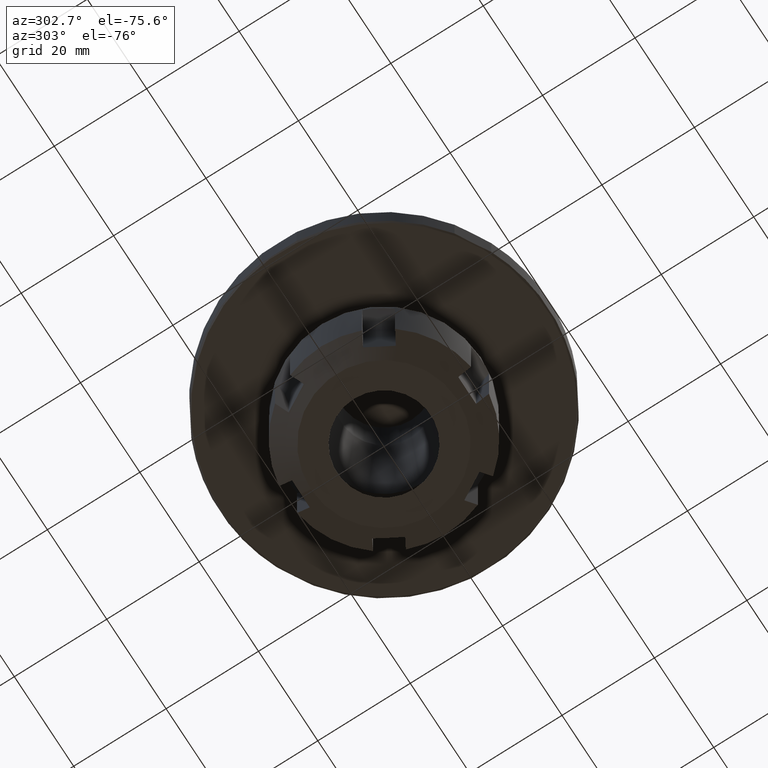
[diagram: clean part render]
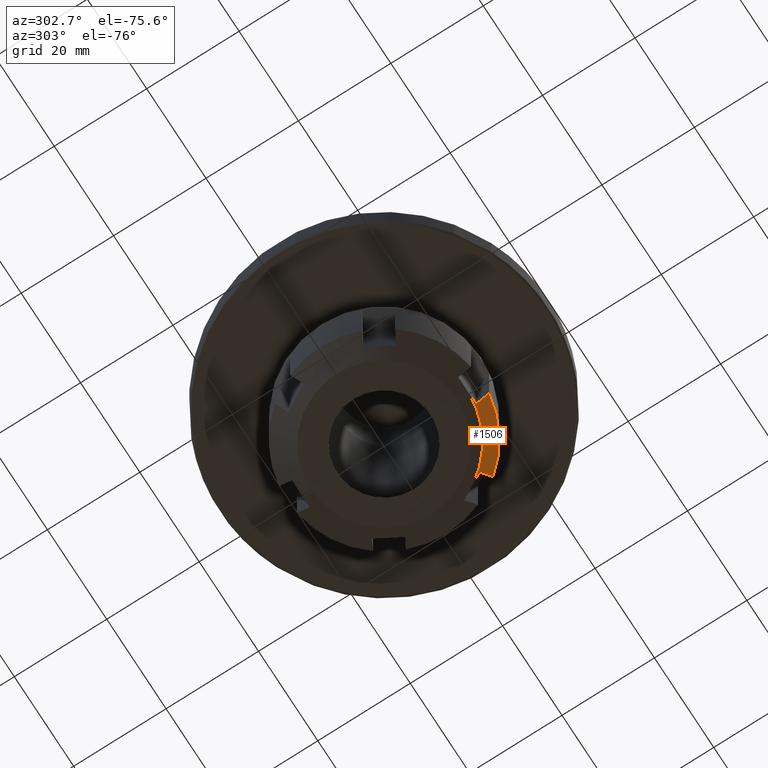
[diagram: same view with one face highlighted and labeled with its STEP entity id]
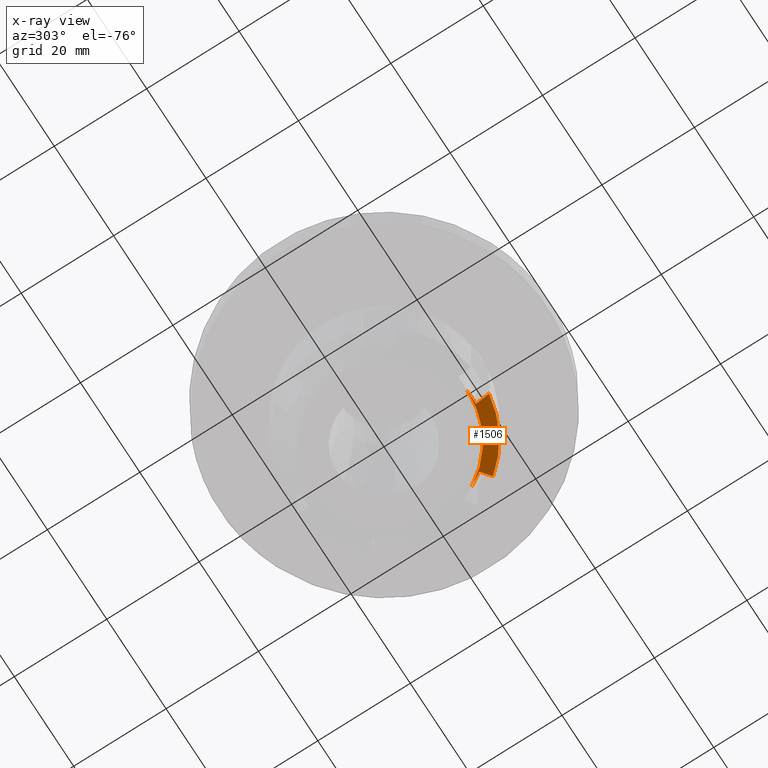
[diagram: x-ray of the same camera — body ghosted, the highlighted face saturated]
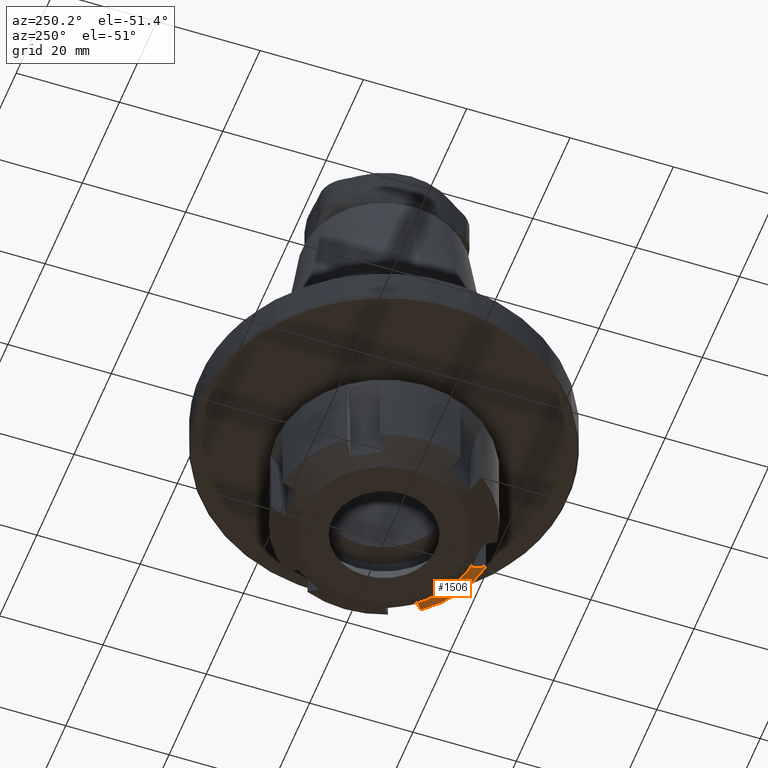
[diagram: same view with one face highlighted and labeled with its STEP entity id]
A machine part, auxiliary view. The second image highlights one B-rep face of the part: STEP entity #1506.
The next image is the same camera in x-ray: the body ghosted, the highlighted face saturated — about 0% of this face is hidden behind the body in this view.
A second angle (auxiliary view) of the same face is appended — the face is thin or edge-on in the first view.
In plain terms, the highlighted conical surface has half-angle 60 deg.
Its self-contained STEP definition (entity closure, byte-faithful):
#32=B_SPLINE_CURVE_WITH_KNOTS('',3,(#2365,#2366,#2367,#2368),
 .UNSPECIFIED.,.F.,.F.,(4,4),(0.0052497924532419,0.00845572257417619),
 .UNSPECIFIED.);
#34=B_SPLINE_CURVE_WITH_KNOTS('',3,(#2377,#2378,#2379,#2380),
 .UNSPECIFIED.,.F.,.F.,(4,4),(0.00454577362923761,0.00754768016302608),
 .UNSPECIFIED.);
#35=B_SPLINE_CURVE_WITH_KNOTS('',3,(#2382,#2383,#2384,#2385),
 .UNSPECIFIED.,.F.,.F.,(4,4),(0.0052497924532419,0.00845572257417619),
 .UNSPECIFIED.);
#37=B_SPLINE_CURVE_WITH_KNOTS('',3,(#2400,#2401,#2402,#2403),
 .UNSPECIFIED.,.F.,.F.,(4,4),(0.00754768016302608,0.0105290968518202),
 .UNSPECIFIED.);
#436=ORIENTED_EDGE('',*,*,#794,.F.);
#437=ORIENTED_EDGE('',*,*,#763,.F.);
#438=ORIENTED_EDGE('',*,*,#762,.T.);
#439=ORIENTED_EDGE('',*,*,#801,.T.);
#440=ORIENTED_EDGE('',*,*,#769,.T.);
#441=ORIENTED_EDGE('',*,*,#759,.T.);
#759=EDGE_CURVE('',#967,#968,#32,.T.);
#762=EDGE_CURVE('',#969,#970,#34,.T.);
#763=EDGE_CURVE('',#969,#971,#35,.T.);
#769=EDGE_CURVE('',#975,#967,#37,.T.);
#794=EDGE_CURVE('',#971,#968,#1100,.T.);
#801=EDGE_CURVE('',#970,#975,#1107,.T.);
#967=VERTEX_POINT('',#2362);
#968=VERTEX_POINT('',#2364);
#969=VERTEX_POINT('',#2371);
#970=VERTEX_POINT('',#2376);
#971=VERTEX_POINT('',#2386);
#975=VERTEX_POINT('',#2404);
#1100=CIRCLE('',#1639,21.);
#1107=CIRCLE('',#1651,18.);
#1208=EDGE_LOOP('',(#436,#437,#438,#439,#440,#441));
#1348=FACE_BOUND('',#1208,.T.);
#1450=CONICAL_SURFACE('',#1650,18.,1.04719752916609);
#1506=ADVANCED_FACE('',(#1348),#1450,.T.);
#1639=AXIS2_PLACEMENT_3D('',#2487,#1912,#1913);
#1650=AXIS2_PLACEMENT_3D('',#2499,#1934,#1935);
#1651=AXIS2_PLACEMENT_3D('',#2500,#1936,#1937);
#1912=DIRECTION('',(-2.77555756156289E-17,1.38195009707705E-33,1.));
#1913=DIRECTION('',(-9.95799858409638E-17,1.,1.38195046441903E-33));
#1934=DIRECTION('',(-2.77555756156289E-17,1.38195009707705E-33,1.));
#1935=DIRECTION('',(-9.95799858409638E-17,1.,1.38195046441903E-33));
#1936=DIRECTION('',(-2.77555756156289E-17,1.38195009707705E-33,1.));
#1937=DIRECTION('',(-9.95799858409638E-17,1.,1.38195046441903E-33));
#2362=CARTESIAN_POINT('',(14.0884572681199,-11.5980762113533,-31.5887019809583));
#2364=CARTESIAN_POINT('',(16.5,-12.9903810567666,-30.));
#2365=CARTESIAN_POINT('',(14.0884572681199,-11.5980762113533,-31.5887019809583));
#2366=CARTESIAN_POINT('',(14.892662109289,-12.0623840928859,-31.0598601081552));
#2367=CARTESIAN_POINT('',(15.6964635371012,-12.5264590636083,-30.5301965905844));
#2368=CARTESIAN_POINT('',(16.5,-12.9903810567666,-30.));
#2371=CARTESIAN_POINT('',(3.,-18.,-31.5887019809583));
#2376=CARTESIAN_POINT('',(4.87747571367086E-15,-18.,-31.7320508956909));
#2377=CARTESIAN_POINT('',(3.00000000000001,-18.,-31.5887019809583));
#2378=CARTESIAN_POINT('',(2.00372793030645,-18.,-31.6832639458588));
#2379=CARTESIAN_POINT('',(1.00380793974437,-18.,-31.7320508956909));
#2380=CARTESIAN_POINT('',(5.46012263031925E-15,-18.,-31.7320508956909));
#2382=CARTESIAN_POINT('',(3.00000000000001,-18.,-31.5887019809583));
#2383=CARTESIAN_POINT('',(3.00000000000001,-18.9286157630652,-31.0598601081552));
#2384=CARTESIAN_POINT('',(3.00000000000001,-19.85676570451,-30.5301965905844));
#2385=CARTESIAN_POINT('',(3.00000000000001,-20.7846096908265,-30.));
#2386=CARTESIAN_POINT('',(3.00000000000001,-20.7846096908265,-30.));
#2400=CARTESIAN_POINT('',(15.5884572681199,-8.99999999999999,-31.7320508956909));
#2401=CARTESIAN_POINT('',(15.0899790992941,-9.8633895148701,-31.7320508956909));
#2402=CARTESIAN_POINT('',(14.5874221342859,-10.733843711962,-31.6834212842415));
#2403=CARTESIAN_POINT('',(14.0884572681199,-11.5980762113533,-31.5887019809583));
#2404=CARTESIAN_POINT('',(15.5884572681199,-8.99999999999999,-31.7320508956909));
#2487=CARTESIAN_POINT('',(8.32670462047768E-16,-2.15353457239194E-15,-30.));
#2499=CARTESIAN_POINT('',(8.80744531653236E-16,-2.15353457239194E-15,-31.7320508956909));
#2500=CARTESIAN_POINT('',(8.80744531653236E-16,-2.15353457239194E-15,-31.7320508956909));